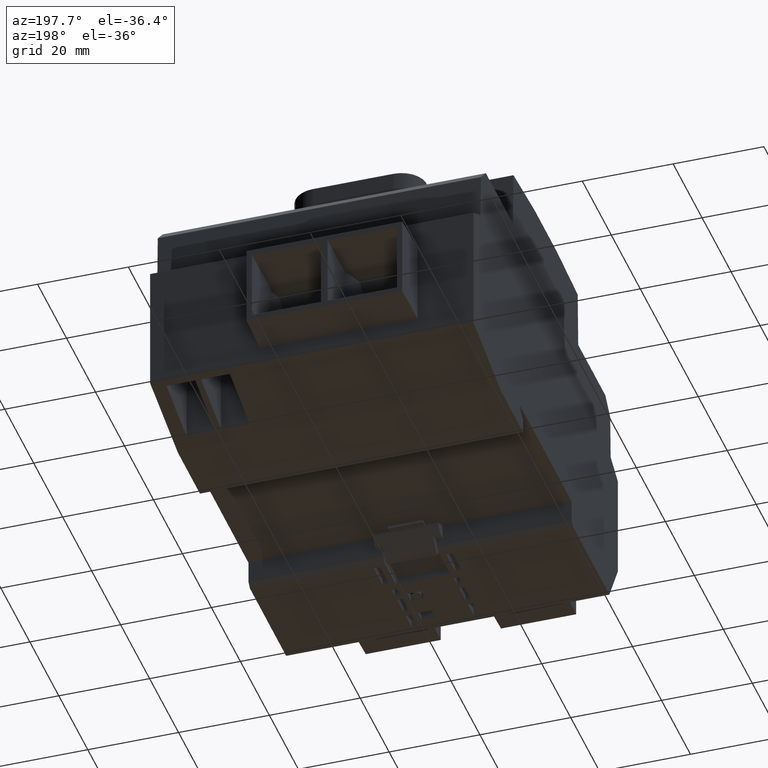
[diagram: clean part render]
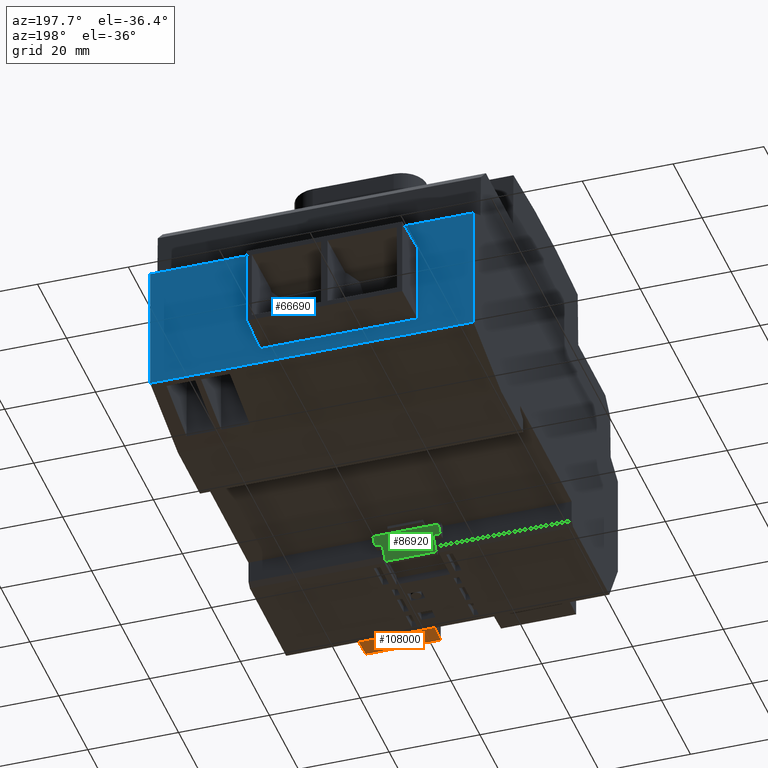
[diagram: same view with three faces highlighted in distinct colors, each labeled with its STEP entity id]
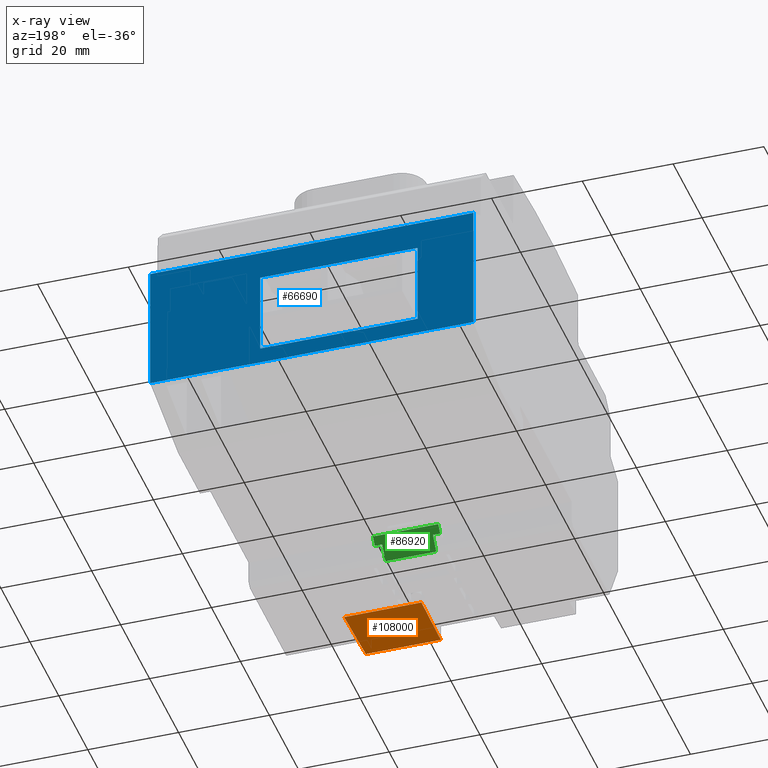
[diagram: x-ray of the same camera — body ghosted, the three highlighted faces saturated]
A machine part, auxiliary view with three faces highlighted in distinct colors.
The next image is the same camera in x-ray (body ghosted, the three faces saturated) — at least one of them is partly hidden behind the body in this view.
Their STEP definitions:

[orange] entity #108000 — the highlighted planar face has unit normal (-0, -0.0175, -0.9998).
#6620=CARTESIAN_POINT('',(201.115601957728,173.007060643003,
38.1118470157806));
#6630=VERTEX_POINT('',#6620);
#6660=CARTESIAN_POINT('',(201.115601957728,173.007060643001,
-17.8999999999918));
#6670=DIRECTION('',(5.83885329293524E-15,2.81680302465783E-14,1.));
#6680=VECTOR('',#6670,1.);
#6690=LINE('',#6660,#6680);
#6700=CARTESIAN_POINT('',(201.115601957728,173.007060643003,
21.0880689255266));
#6710=VERTEX_POINT('',#6700);
#6720=EDGE_CURVE('',#6710,#6630,#6690,.T.);
#100140=CARTESIAN_POINT('',(287.574663199032,174.516209166365,
22.5972174531252));
#100150=DIRECTION('',(0.999695459882742,0.0174497491117048,
0.0174497491606851));
#100160=VECTOR('',#100150,1.);
#100170=LINE('',#100140,#100160);
#100180=CARTESIAN_POINT('',(215.270798699474,173.254140520508,
21.3351488037253));
#100190=VERTEX_POINT('',#100180);
#100200=EDGE_CURVE('',#6710,#100190,#100170,.T.);
#100520=CARTESIAN_POINT('',(215.270798699474,173.254140520508,
37.8647671375819));
#100530=VERTEX_POINT('',#100520);
#100560=CARTESIAN_POINT('',(287.574663199032,174.516209166365,
36.6026984881819));
#100570=DIRECTION('',(0.999695459882742,0.0174497491117038,
-0.0174497491606853));
#100580=VECTOR('',#100570,1.);
#100590=LINE('',#100560,#100580);
#100600=EDGE_CURVE('',#6630,#100530,#100590,.T.);
#101140=CARTESIAN_POINT('',(215.270798699474,173.254140520506,
-17.8999999999918));
#101150=DIRECTION('',(3.67394039284801E-16,-2.8059699796738E-14,-1.));
#101160=VECTOR('',#101150,1.);
#101170=LINE('',#101140,#101160);
#101180=EDGE_CURVE('',#100530,#100190,#101170,.T.);
#107890=CARTESIAN_POINT('',(220.77079871014,173.350143377532,
106.899915941299));
#107900=DIRECTION('',(0.0174524063882977,-0.999847695157246,
2.8061838078651E-14));
#107910=DIRECTION('',(-0.999847695157246,-0.0174524063882977,
3.67300560421197E-16));
#107920=AXIS2_PLACEMENT_3D('',#107890,#107900,#107910);
#107930=PLANE('',#107920);
#107940=ORIENTED_EDGE('',*,*,#6720,.F.);
#107950=ORIENTED_EDGE('',*,*,#100600,.F.);
#107960=ORIENTED_EDGE('',*,*,#101180,.F.);
#107970=ORIENTED_EDGE('',*,*,#100200,.T.);
#107980=EDGE_LOOP('',(#107970,#107960,#107950,#107940));
#107990=FACE_OUTER_BOUND('',#107980,.T.);
#108000=ADVANCED_FACE('',(#107990),#107930,.T.);

[blue] entity #66690 — the highlighted planar face has unit normal (0, -1, -0).
#4900=CARTESIAN_POINT('',(105.370798721478,197.942996615465,
8.90000000000006));
#4910=VERTEX_POINT('',#4900);
#4940=CARTESIAN_POINT('',(105.370798721422,2.8421709430404E-14,
8.90000000000006));
#4950=DIRECTION('',(2.8421709430404E-13,1.,3.48065554802404E-29));
#4960=VECTOR('',#4950,1.);
#4970=LINE('',#4940,#4960);
#4980=CARTESIAN_POINT('',(105.37079872147,169.481119940158,
8.90000000000006));
#4990=VERTEX_POINT('',#4980);
#5000=EDGE_CURVE('',#4990,#4910,#4970,.T.);
#35660=CARTESIAN_POINT('',(105.37079872147,169.481119940158,19.));
#35670=DIRECTION('',(-1.22464679914735E-16,0.,1.));
#35680=VECTOR('',#35670,1.);
#35690=LINE('',#35660,#35680);
#35700=CARTESIAN_POINT('',(105.37079872147,169.481119940158,
80.1000000000065));
#35710=VERTEX_POINT('',#35700);
#35720=EDGE_CURVE('',#4990,#35710,#35690,.T.);
#40550=CARTESIAN_POINT('',(105.370798721478,197.942996615465,
80.1000000000065));
#40560=VERTEX_POINT('',#40550);
#40590=CARTESIAN_POINT('',(105.370798721478,197.942996615465,19.));
#40600=DIRECTION('',(-1.22464679914735E-16,0.,1.));
#40610=VECTOR('',#40600,1.);
#40620=LINE('',#40590,#40610);
#40630=EDGE_CURVE('',#4910,#40560,#40620,.T.);
#66080=CARTESIAN_POINT('',(105.370798721422,2.8421709430404E-14,
80.1000000000065));
#66090=DIRECTION('',(-2.8421709430404E-13,-1.,1.56805424539043E-29));
#66100=VECTOR('',#66090,1.);
#66110=LINE('',#66080,#66100);
#66120=EDGE_CURVE('',#40560,#35710,#66110,.T.);
#66240=CARTESIAN_POINT('',(105.370798721478,197.942996615465,
8.90000000000006));
#66250=DIRECTION('',(1.,-2.8421709430404E-13,1.22464679914735E-16));
#66260=DIRECTION('',(2.8421709430404E-13,1.,3.48065554802404E-29));
#66270=AXIS2_PLACEMENT_3D('',#66240,#66250,#66260);
#66280=PLANE('',#66270);
#66290=CARTESIAN_POINT('',(105.370798721476,191.520333818074,
-17.8999999999918));
#66300=DIRECTION('',(1.22464679914735E-16,-2.1437285847435E-18,-1.));
#66310=VECTOR('',#66300,1.);
#66320=LINE('',#66290,#66310);
#66330=CARTESIAN_POINT('',(105.370798721476,191.520333818074,
67.8410632933695));
#66340=VERTEX_POINT('',#66330);
#66350=CARTESIAN_POINT('',(105.370798721476,191.520333818074,
33.163829368157));
#66360=VERTEX_POINT('',#66350);
#66370=EDGE_CURVE('',#66340,#66360,#66320,.T.);
#66380=ORIENTED_EDGE('',*,*,#66370,.F.);
#66390=CARTESIAN_POINT('',(105.370798721422,2.8421709430404E-14,
33.163829368185));
#66400=DIRECTION('',(-2.8421709430404E-13,-1.,1.4651022094284E-13));
#66410=VECTOR('',#66400,1.);
#66420=LINE('',#66390,#66410);
#66430=CARTESIAN_POINT('',(105.370798721471,173.077844366848,
33.1638293681597));
#66440=VERTEX_POINT('',#66430);
#66450=EDGE_CURVE('',#66360,#66440,#66420,.T.);
#66460=ORIENTED_EDGE('',*,*,#66450,.F.);
#66470=CARTESIAN_POINT('',(105.370798721471,173.077844366848,
-17.8999999999918));
#66480=DIRECTION('',(-1.22464679914737E-16,-4.27525787463284E-18,1.));
#66490=VECTOR('',#66480,1.);
#66500=LINE('',#66470,#66490);
#66510=CARTESIAN_POINT('',(105.370798721471,173.077844366848,
67.8410632933668));
#66520=VERTEX_POINT('',#66510);
#66530=EDGE_CURVE('',#66440,#66520,#66500,.T.);
#66540=ORIENTED_EDGE('',*,*,#66530,.F.);
#66550=CARTESIAN_POINT('',(105.370798721422,2.8421709430404E-14,
67.8410632933415));
#66560=DIRECTION('',(2.8421709430404E-13,1.,1.46328379429191E-13));
#66570=VECTOR('',#66560,1.);
#66580=LINE('',#66550,#66570);
#66590=EDGE_CURVE('',#66520,#66340,#66580,.T.);
#66600=ORIENTED_EDGE('',*,*,#66590,.F.);
#66610=EDGE_LOOP('',(#66600,#66540,#66460,#66380));
#66620=FACE_BOUND('',#66610,.T.);
#66630=ORIENTED_EDGE('',*,*,#35720,.T.);
#66640=ORIENTED_EDGE('',*,*,#5000,.F.);
#66650=ORIENTED_EDGE('',*,*,#40630,.F.);
#66660=ORIENTED_EDGE('',*,*,#66120,.F.);
#66670=EDGE_LOOP('',(#66660,#66650,#66640,#66630));
#66680=FACE_OUTER_BOUND('',#66670,.T.);
#66690=ADVANCED_FACE('',(#66620,#66680),#66280,.F.);

[green] entity #86920 — the highlighted planar face has unit normal (-0, -0.766, 0.6428).
#84840=CARTESIAN_POINT('',(171.471403127362,167.11761573178,
55.2592891598353));
#84850=DIRECTION('',(-1.22464679914735E-16,0.,1.));
#84860=VECTOR('',#84850,1.);
#84870=LINE('',#84840,#84860);
#84880=CARTESIAN_POINT('',(171.471403127362,167.11761573178,
50.1000000000033));
#84890=VERTEX_POINT('',#84880);
#84900=CARTESIAN_POINT('',(171.471403127362,167.11761573178,
51.7000000000033));
#84910=VERTEX_POINT('',#84900);
#84920=EDGE_CURVE('',#84890,#84910,#84870,.T.);
#86100=CARTESIAN_POINT('',(173.778927113099,164.36761573178,
50.1000000000033));
#86110=VERTEX_POINT('',#86100);
#86190=CARTESIAN_POINT('',(173.778927113099,164.36761573178,
38.9000000000033));
#86200=VERTEX_POINT('',#86190);
#86230=CARTESIAN_POINT('',(173.778927113099,164.36761573178,
55.2592891598353));
#86240=DIRECTION('',(-1.22464679914735E-16,0.,1.));
#86250=VECTOR('',#86240,1.);
#86260=LINE('',#86230,#86250);
#86270=EDGE_CURVE('',#86200,#86110,#86260,.T.);
#86390=CARTESIAN_POINT('',(174.714846543287,163.252230388476,
53.1400024000037));
#86400=DIRECTION('',(0.766044443118978,0.642787609686539,
9.38133875270273E-17));
#86410=DIRECTION('',(-0.642787609686539,0.766044443118978,
-7.87187788734199E-17));
#86420=AXIS2_PLACEMENT_3D('',#86390,#86400,#86410);
#86430=PLANE('',#86420);
#86440=CARTESIAN_POINT('',(186.443732232039,149.274288731778,
51.7000000000035));
#86450=DIRECTION('',(-0.642787609686539,0.766044443118978,
-1.0209503878578E-14));
#86460=VECTOR('',#86450,1.);
#86470=LINE('',#86440,#86460);
#86480=CARTESIAN_POINT('',(170.170798699037,168.66761573178,
51.7000000000032));
#86490=VERTEX_POINT('',#86480);
#86500=EDGE_CURVE('',#84910,#86490,#86470,.T.);
#86510=ORIENTED_EDGE('',*,*,#86500,.T.);
#86520=ORIENTED_EDGE('',*,*,#84920,.T.);
#86530=CARTESIAN_POINT('',(186.443732232039,149.274288731778,
50.1000000000033));
#86540=DIRECTION('',(0.642787609686539,-0.766044443118978,
-6.00590992047247E-17));
#86550=VECTOR('',#86540,1.);
#86560=LINE('',#86530,#86550);
#86570=EDGE_CURVE('',#84890,#86110,#86560,.T.);
#86580=ORIENTED_EDGE('',*,*,#86570,.F.);
#86590=ORIENTED_EDGE('',*,*,#86270,.T.);
#86600=CARTESIAN_POINT('',(186.443732232039,149.274288731778,
38.9000000000033));
#86610=DIRECTION('',(-0.642787609686539,0.766044443118978,
-7.87187788734199E-17));
#86620=VECTOR('',#86610,1.);
#86630=LINE('',#86600,#86620);
#86640=CARTESIAN_POINT('',(171.471403127362,167.11761573178,
38.9000000000033));
#86650=VERTEX_POINT('',#86640);
#86660=EDGE_CURVE('',#86200,#86650,#86630,.T.);
#86670=ORIENTED_EDGE('',*,*,#86660,.F.);
#86680=CARTESIAN_POINT('',(171.471403127362,167.11761573178,
55.2592891598353));
#86690=DIRECTION('',(-1.22464679914735E-16,0.,1.));
#86700=VECTOR('',#86690,1.);
#86710=LINE('',#86680,#86700);
#86720=CARTESIAN_POINT('',(171.471403127362,167.11761573178,
37.3000000000034));
#86730=VERTEX_POINT('',#86720);
#86740=EDGE_CURVE('',#86730,#86650,#86710,.T.);
#86750=ORIENTED_EDGE('',*,*,#86740,.T.);
#86760=CARTESIAN_POINT('',(186.443732232039,149.274288731778,
37.3000000000035));
#86770=DIRECTION('',(0.642787609686539,-0.766044443118978,
2.3207627642162E-17));
#86780=VECTOR('',#86770,1.);
#86790=LINE('',#86760,#86780);
#86800=CARTESIAN_POINT('',(170.170798699037,168.66761573178,
37.3000000000034));
#86810=VERTEX_POINT('',#86800);
#86820=EDGE_CURVE('',#86810,#86730,#86790,.T.);
#86830=ORIENTED_EDGE('',*,*,#86820,.T.);
#86840=CARTESIAN_POINT('',(170.170798699037,168.66761573178,19.));
#86850=DIRECTION('',(1.22464679914735E-16,0.,-1.));
#86860=VECTOR('',#86850,1.);
#86870=LINE('',#86840,#86860);
#86880=EDGE_CURVE('',#86490,#86810,#86870,.T.);
#86890=ORIENTED_EDGE('',*,*,#86880,.T.);
#86900=EDGE_LOOP('',(#86890,#86830,#86750,#86670,#86590,#86580,#86520,
#86510));
#86910=FACE_OUTER_BOUND('',#86900,.T.);
#86920=ADVANCED_FACE('',(#86910),#86430,.F.);